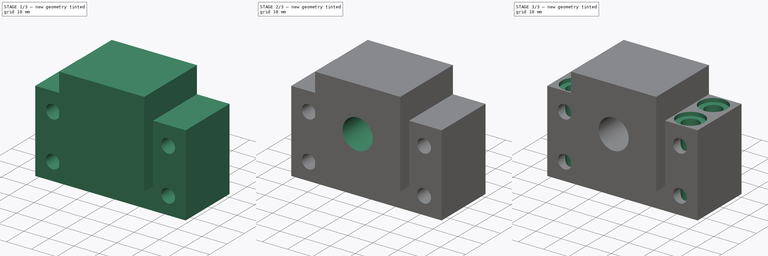
[diagram: build sequence overview — one tinted view per stage of 3, left to right]
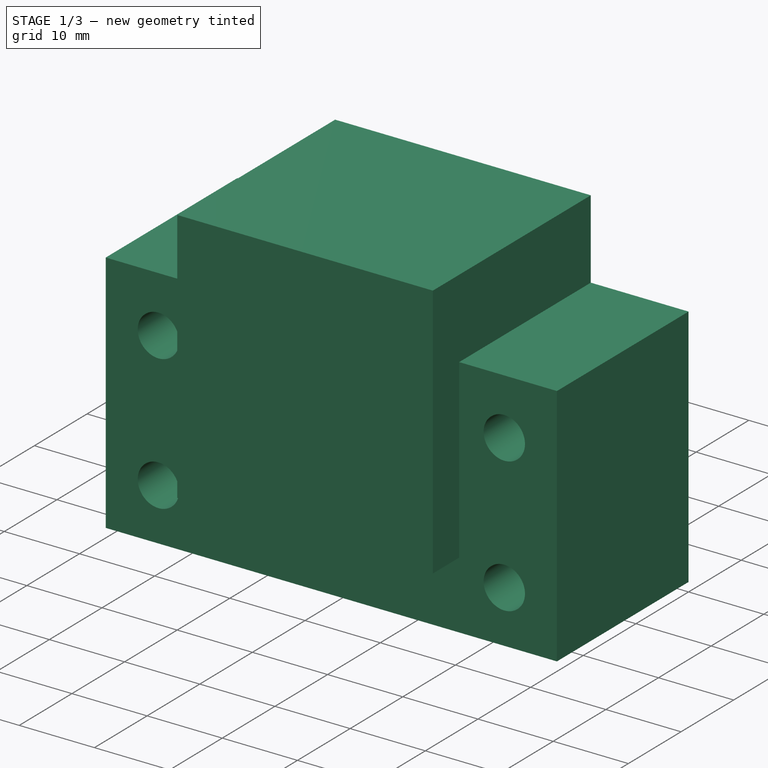
[diagram: stage 1 of 3 — iso view after this stage's code; geometry added in this stage tinted green]
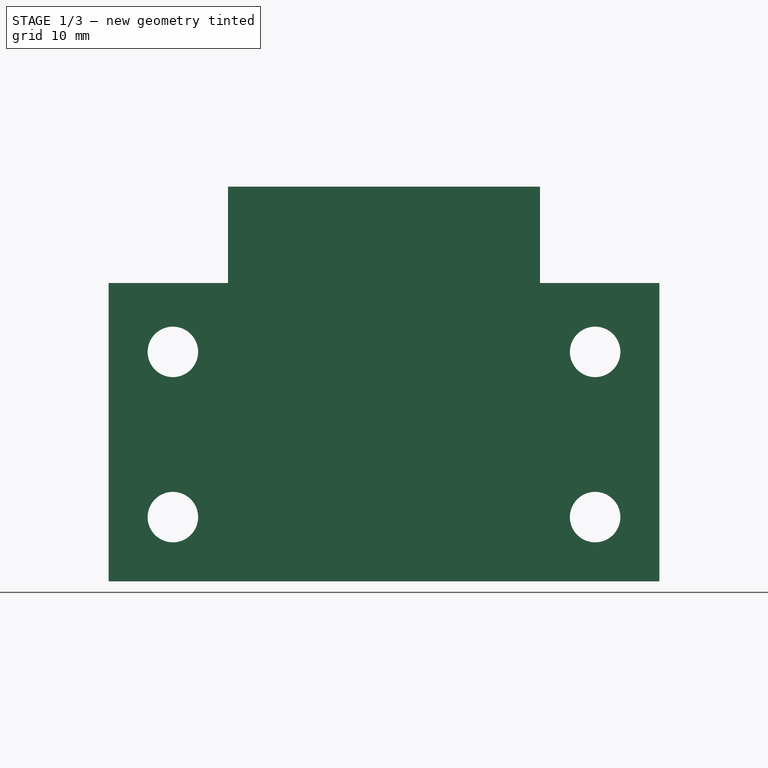
[diagram: stage 1 of 3 — front view after this stage's code; geometry added in this stage tinted green]
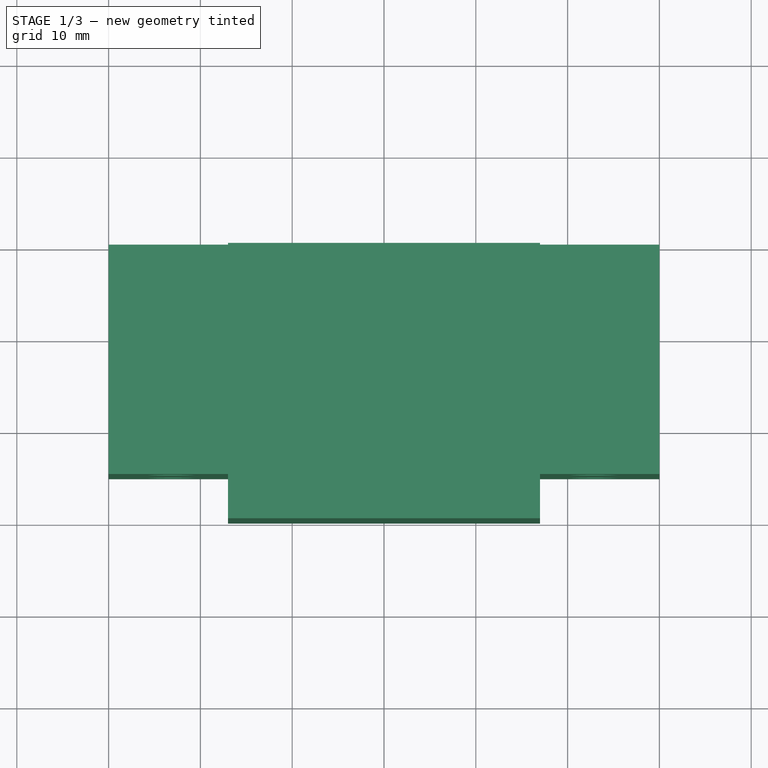
[diagram: stage 1 of 3 — top view after this stage's code; geometry added in this stage tinted green]
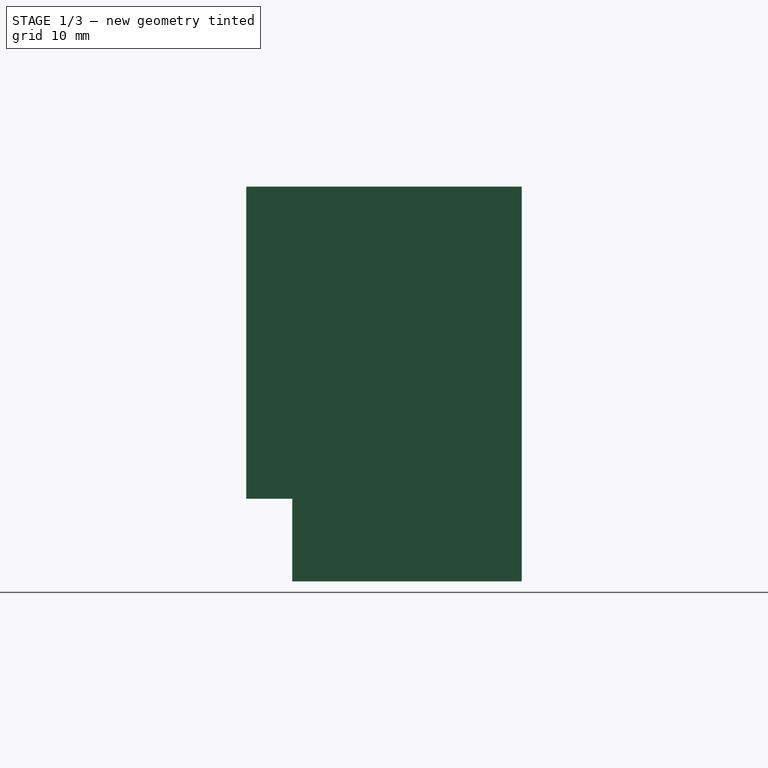
[diagram: stage 1 of 3 — right view after this stage's code; geometry added in this stage tinted green]
FCSTD DOCUMENT  (FreeCAD 0.19R)
Label: BK12
License: All rights reserved
LicenseURL: http://en.wikipedia.org/wiki/All_rights_reserved
objects: Sketcher::SketchObject×5, PartDesign::Pocket×3, PartDesign::Pad×2, PartDesign::CoordinateSystem×2, PartDesign::Body×1
note: 18 computed .brp shape members not serialized (recipe doc carries the construction recipe); baked Part::Feature solids carry a one-line shape summary decoded from their .brp

FEATURE [Sketcher::SketchObject] Sketch
  FullyConstrained = true
  MapMode = 5
  Placement = pos=(0,0,0) rot=(1,0,0;1.5708rad)
  Support = -> [XZ_Plane]
  sketch-geometry (12):
    g0: LineSegment StartX=-30 StartY=32.5 StartZ=0 EndX=-30 EndY=0 EndZ=0
    g1: LineSegment StartX=-30 StartY=0 StartZ=0 EndX=30 EndY=0 EndZ=0
    g2: LineSegment StartX=30 StartY=0 StartZ=0 EndX=30 EndY=32.5 EndZ=0
    g3: LineSegment StartX=-30 StartY=32.5 StartZ=0 EndX=-17 EndY=32.5 EndZ=0
    g4: LineSegment StartX=-17 StartY=32.5 StartZ=0 EndX=-17 EndY=43 EndZ=0
    g5: LineSegment StartX=-17 StartY=43 StartZ=0 EndX=17 EndY=43 EndZ=0
    g6: LineSegment StartX=17 StartY=43 StartZ=0 EndX=17 EndY=32.5 EndZ=0
    g7: LineSegment StartX=17 StartY=32.5 StartZ=0 EndX=30 EndY=32.5 EndZ=0
    g8: Circle CenterX=-23 CenterY=25 CenterZ=0 NormalX=0 NormalY=0 NormalZ=1 AngleXU=0 Radius=2.75
    g9: Circle CenterX=-23 CenterY=7 CenterZ=0 NormalX=0 NormalY=0 NormalZ=1 AngleXU=0 Radius=2.75
    g10: Circle CenterX=23 CenterY=7 CenterZ=0 NormalX=0 NormalY=0 NormalZ=1 AngleXU=0 Radius=2.75
    g11: Circle CenterX=23 CenterY=25 CenterZ=0 NormalX=0 NormalY=0 NormalZ=1 AngleXU=0 Radius=2.75
  constraints (33):
    c: PointOnObject(g0,g-1)
    c: Vertical(g0)
    c: Coincident(g1,g0)
    c: Coincident(g2,g1)
    c: Vertical(g2)
    c: Coincident(g3,g0)
    c: Horizontal(g3)
    c: Coincident(g4,g3)
    c: Vertical(g4)
    c: Coincident(g5,g4)
    c: Horizontal(g5)
    c: Coincident(g6,g5)
    c: Vertical(g6)
    c: Coincident(g7,g6)
    c: Coincident(g7,g2)
    c: Horizontal(g7)
    c: Equal(g3,g7)
    c: Equal(g6,g4)
    c: DistanceY(g2,g2) = 32.5
    c: Symmetric(g0,g1,g-2)
    c: DistanceY(g-1,g4) = 43
    c: DistanceX(g0,g1) = 60
    c: DistanceX(g5,g5) = 34
    c: Equal(g11,g10)
    c: Equal(g10,g9)
    c: Equal(g9,g8)
    c: Symmetric(g9,g10,g-2)
    c: Symmetric(g8,g11,g-2)
    c: Diameter(g9) = 5.5
    c: DistanceX(g9,g10) = 46
    c: DistanceX(g8,g11) = 46
    c: DistanceY(g9,g8) = 18
    c: DistanceY(g1,g11) = 25
FEATURE [PartDesign::Pad] Pad
  Direction = (1,1,1)
  Length = 25
  Length2 = 100
  Placement = pos=(0,0,0) rot=(1,0,0;1.5708rad)
  Profile = -> Sketch
  Type = 0
FEATURE [Sketcher::SketchObject] Sketch001
  ExternalGeometry = -> [Pad]
  FullyConstrained = true
  MapMode = 5
  Placement = pos=(0,-25,5.5e-15) rot=(1,0,0;1.5708rad)
  Support = -> [Pad]
  sketch-geometry (4):
    g0: LineSegment StartX=-17 StartY=43 StartZ=0 EndX=17 EndY=43 EndZ=0
    g1: LineSegment StartX=17 StartY=43 StartZ=0 EndX=17 EndY=9 EndZ=0
    g2: LineSegment StartX=17 StartY=9 StartZ=0 EndX=-17 EndY=9 EndZ=0
    g3: LineSegment StartX=-17 StartY=9 StartZ=0 EndX=-17 EndY=43 EndZ=0
  constraints (10):
    c: Coincident(g0,g1)
    c: Coincident(g1,g2)
    c: Coincident(g2,g3)
    c: Coincident(g3,g0)
    c: Horizontal(g2)
    c: Vertical(g1)
    c: Vertical(g3)
    c: Coincident(g0,g-3)
    c: Coincident(g0,g-3)
    c: DistanceY(g1,g1) = 34
FEATURE [PartDesign::Pad] Pad001
  BaseFeature = -> Pad
  Direction = (1,1,1)
  Length = 5
  Length2 = 100
  Placement = pos=(0,0,0) rot=(1,0,0;1.5708rad)
  Profile = -> Sketch001
  Type = 0
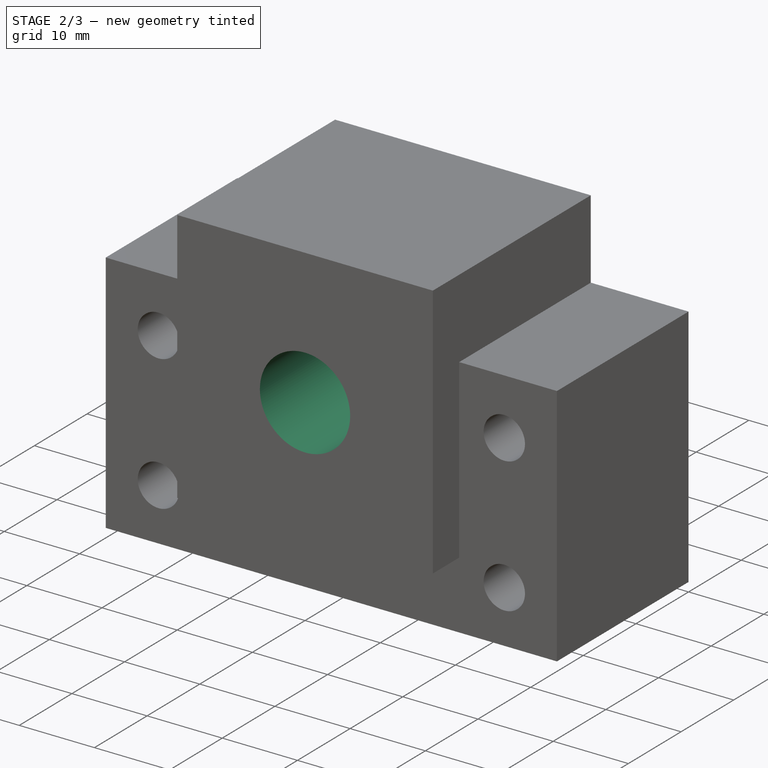
[diagram: stage 2 of 3 — iso view after this stage's code; geometry added in this stage tinted green]
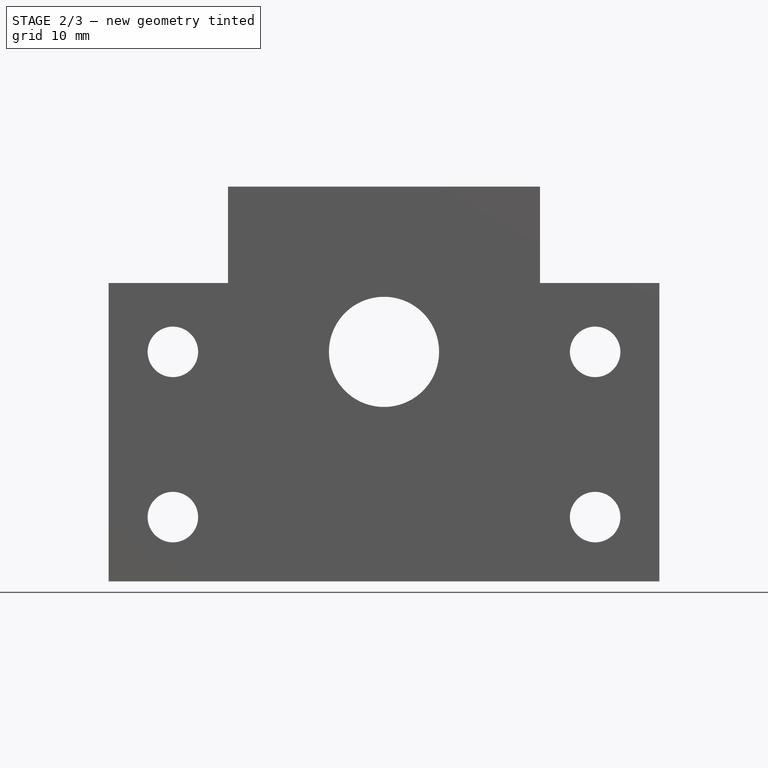
[diagram: stage 2 of 3 — front view after this stage's code; geometry added in this stage tinted green]
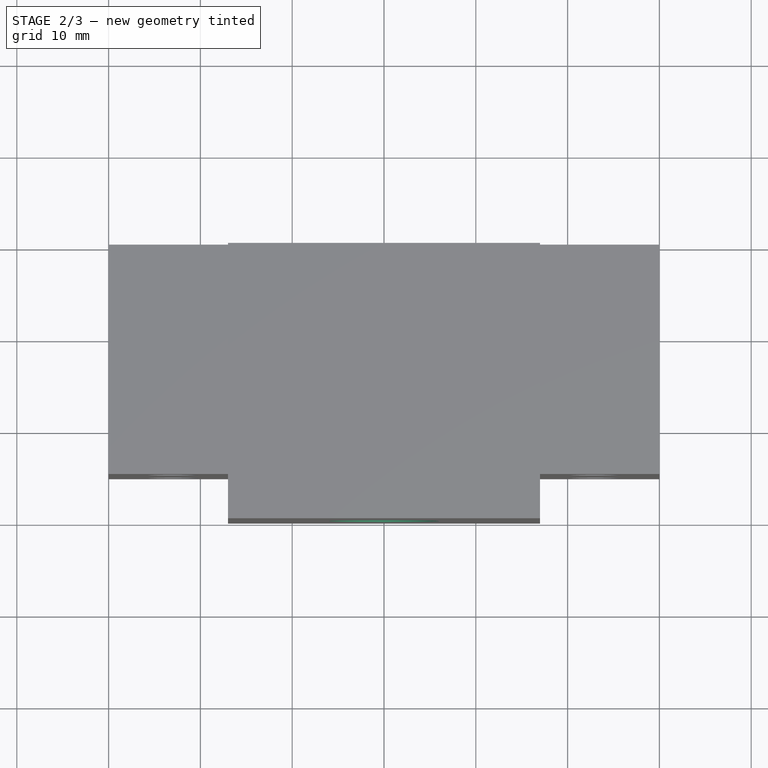
[diagram: stage 2 of 3 — top view after this stage's code; geometry added in this stage tinted green]
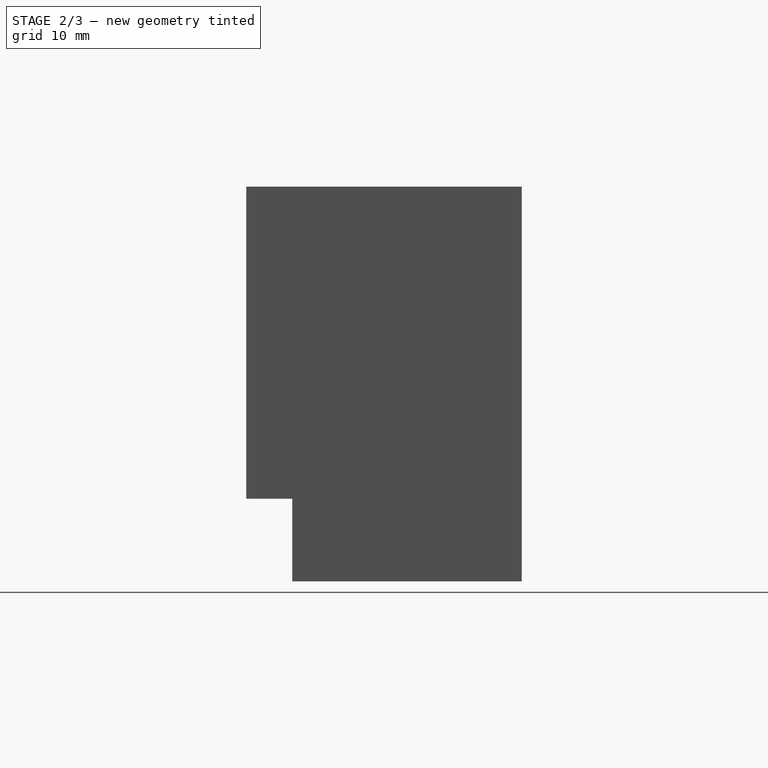
[diagram: stage 2 of 3 — right view after this stage's code; geometry added in this stage tinted green]
FEATURE [Sketcher::SketchObject] Sketch002
  FullyConstrained = true
  MapMode = 5
  Placement = pos=(0,-30,2.19e-14) rot=(1,0,0;1.5708rad)
  Support = -> [Pad001]
  sketch-geometry (1):
    g0: Circle CenterX=0 CenterY=25 CenterZ=0 NormalX=0 NormalY=0 NormalZ=1 AngleXU=0 Radius=6
  constraints (3):
    c: PointOnObject(g0,g-2)
    c: Diameter(g0) = 12
    c: DistanceY(g-1,g0) = 25
FEATURE [PartDesign::Pocket] Pocket
  BaseFeature = -> Pad001
  Length = 5
  Length2 = 100
  Placement = pos=(0,0,0) rot=(1,0,0;1.5708rad)
  Profile = -> Sketch002
  Type = 1
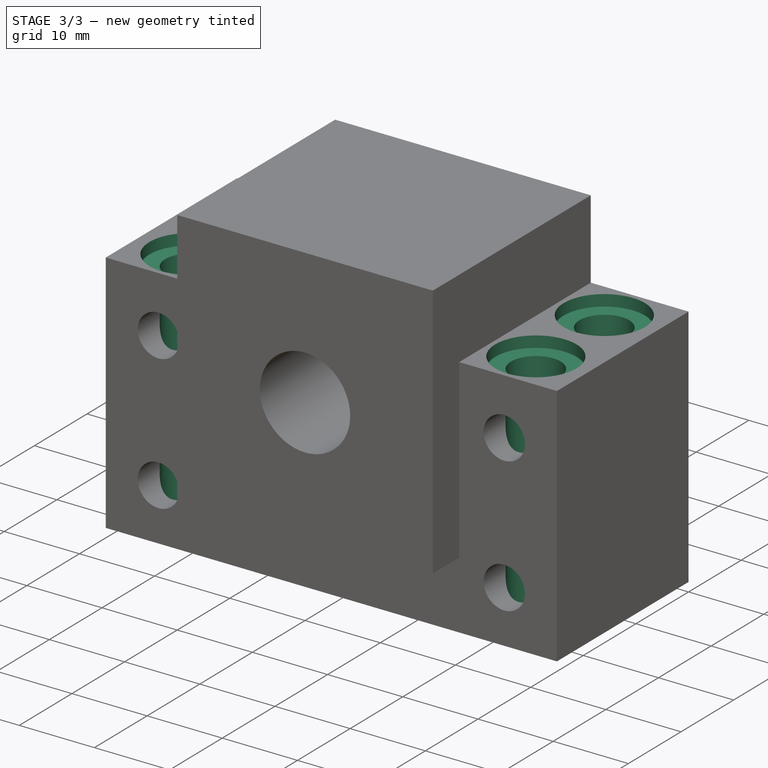
[diagram: stage 3 of 3 — iso view after this stage's code; geometry added in this stage tinted green]
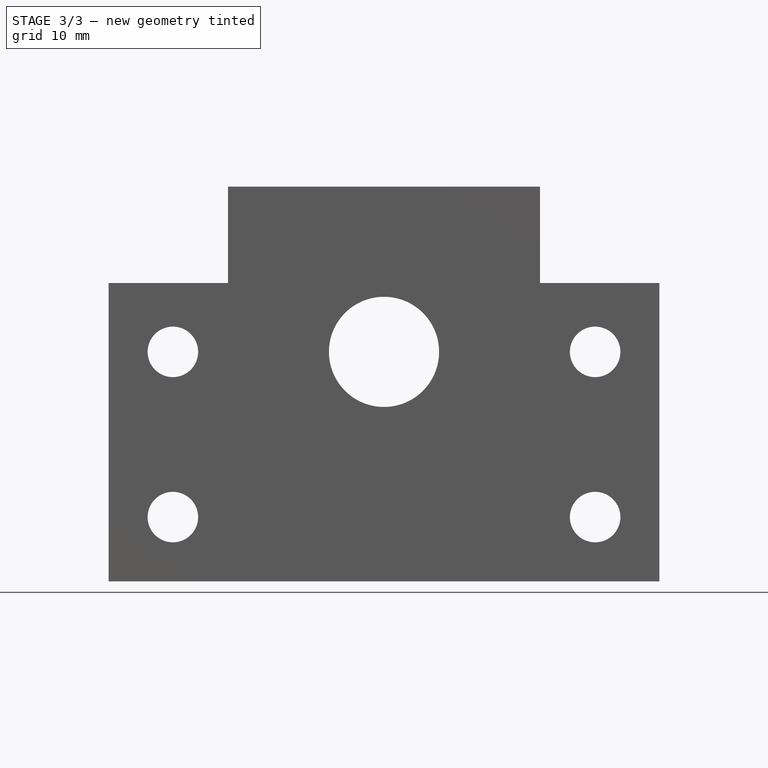
[diagram: stage 3 of 3 — front view after this stage's code; geometry added in this stage tinted green]
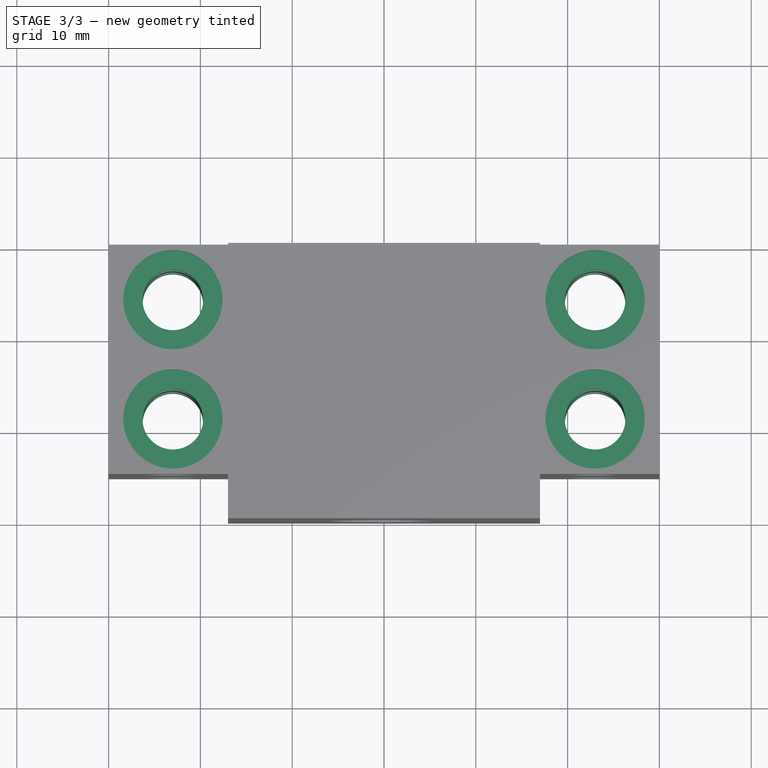
[diagram: stage 3 of 3 — top view after this stage's code; geometry added in this stage tinted green]
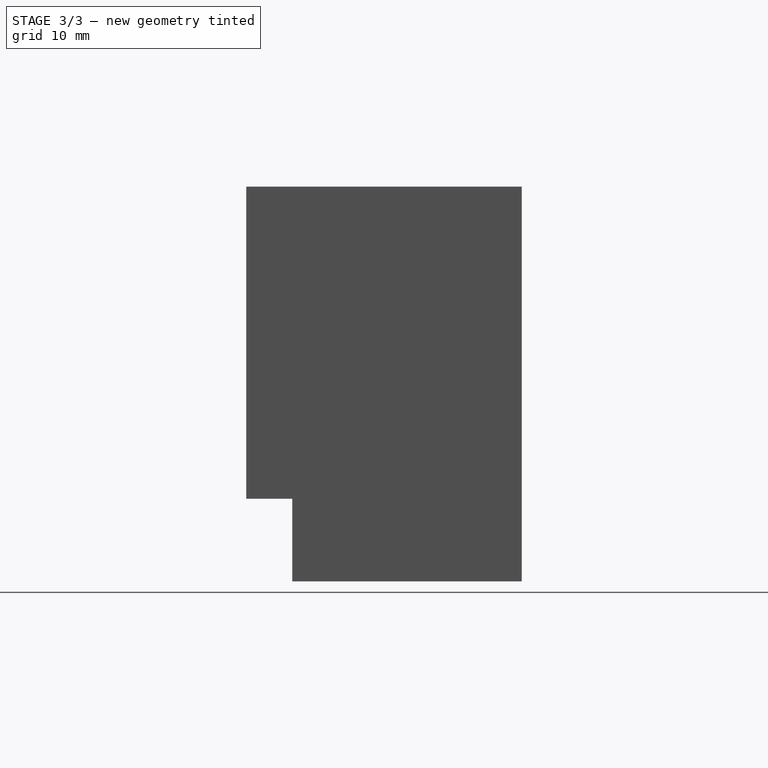
[diagram: stage 3 of 3 — right view after this stage's code; geometry added in this stage tinted green]
FEATURE [Sketcher::SketchObject] Sketch003
  FullyConstrained = true
  MapMode = 5
  Placement = pos=(0,0,0) rot=(1,0,0;3.14159rad)
  Support = -> [Pocket]
  sketch-geometry (4):
    g0: Circle CenterX=-23 CenterY=19 CenterZ=0 NormalX=0 NormalY=0 NormalZ=1 AngleXU=0 Radius=3.3
    g1: Circle CenterX=-23 CenterY=6 CenterZ=0 NormalX=0 NormalY=0 NormalZ=1 AngleXU=0 Radius=3.3
    g2: Circle CenterX=23 CenterY=6 CenterZ=0 NormalX=0 NormalY=0 NormalZ=1 AngleXU=0 Radius=3.3
    g3: Circle CenterX=23 CenterY=19 CenterZ=0 NormalX=0 NormalY=0 NormalZ=1 AngleXU=0 Radius=3.3
  constraints (10):
    c: Symmetric(g0,g3,g-2)
    c: Symmetric(g1,g2,g-2)
    c: Equal(g1,g0)
    c: Equal(g0,g3)
    c: Equal(g3,g2)
    c: Diameter(g3) = 6.6
    c: DistanceX(g1,g2) = 46
    c: DistanceX(g0,g3) = 46
    c: DistanceY(g-1,g2) = 6
    c: DistanceY(g2,g3) = 13
FEATURE [PartDesign::Pocket] Pocket001
  BaseFeature = -> Pocket
  Length = 5
  Length2 = 100
  Placement = pos=(0,0,0) rot=(1,0,0;1.5708rad)
  Profile = -> Sketch003
  Type = 1
FEATURE [Sketcher::SketchObject] Sketch004
  ExternalGeometry = -> [Pocket001]
  FullyConstrained = true
  MapMode = 5
  Placement = pos=(0,1.43e-14,32.5) rot=(0,0,1;3.14159rad)
  Support = -> [Pocket001]
  sketch-geometry (4):
    g0: Circle CenterX=-23 CenterY=19 CenterZ=0 NormalX=0 NormalY=0 NormalZ=1 AngleXU=0 Radius=5.4
    g1: Circle CenterX=-23 CenterY=6 CenterZ=0 NormalX=0 NormalY=0 NormalZ=1 AngleXU=0 Radius=5.4
    g2: Circle CenterX=23 CenterY=6 CenterZ=0 NormalX=0 NormalY=0 NormalZ=1 AngleXU=0 Radius=5.4
    g3: Circle CenterX=23 CenterY=19 CenterZ=0 NormalX=0 NormalY=0 NormalZ=1 AngleXU=0 Radius=5.4
  constraints (8):
    c: Coincident(g0,g-4)
    c: Coincident(g1,g-3)
    c: Coincident(g2,g-6)
    c: Coincident(g3,g-5)
    c: Equal(g3,g0)
    c: Equal(g0,g1)
    c: Equal(g1,g2)
    c: Diameter(g3) = 10.8
FEATURE [PartDesign::Pocket] Pocket002
  BaseFeature = -> Pocket001
  Length = 1.5
  Length2 = 100
  Placement = pos=(0,0,0) rot=(1,0,0;1.5708rad)
  Profile = -> Sketch004
  Type = 0
FEATURE [PartDesign::CoordinateSystem] LCS_mount
  AttacherType = Attacher::AttachEngine3D
  MapMode = 11
  Placement = pos=(0,3.2e-14,25) rot=(0.57735,-0.57735,0.57735;2.0944rad)
  Support = -> [Pocket002]
FEATURE [PartDesign::CoordinateSystem] LCS_H1
  AttacherType = Attacher::AttachEngine3D
  MapMode = 11
  Placement = pos=(23,-19,3.8e-14) rot=(0.707107,-0.707107,0;3.14159rad)
  Support = -> [Pocket002]
FEATURE [PartDesign::Body] Body
  Group = -> [Sketch,Pad,Sketch001,Pad001,Sketch002,Pocket,Sketch003,Pocket001,Sketch004,Pocket002,LCS_mount,LCS_H1]
  Origin = -> Origin
  Tip = -> Pocket002
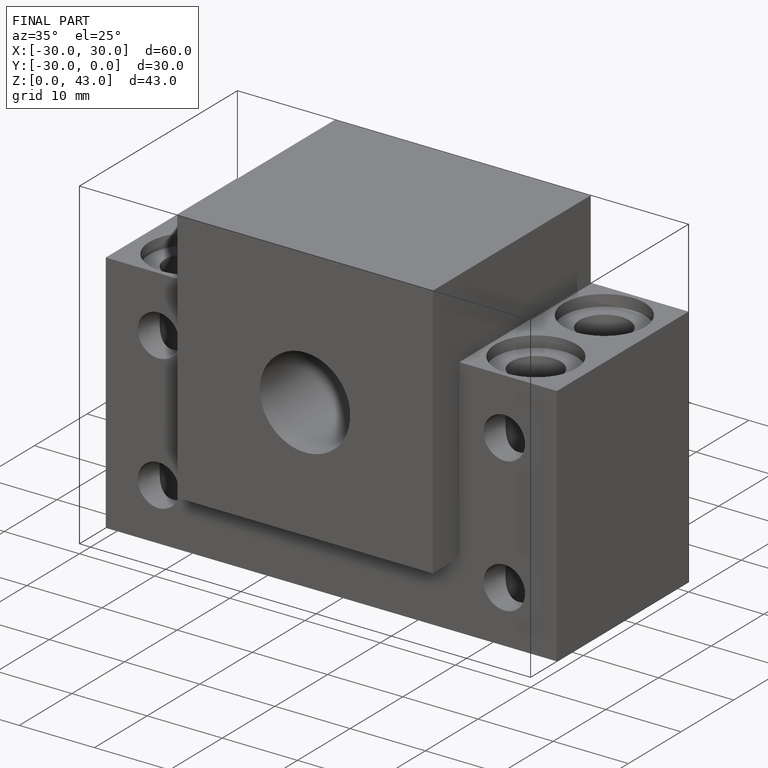
[diagram: finished part — iso view with bounding-box wireframe]
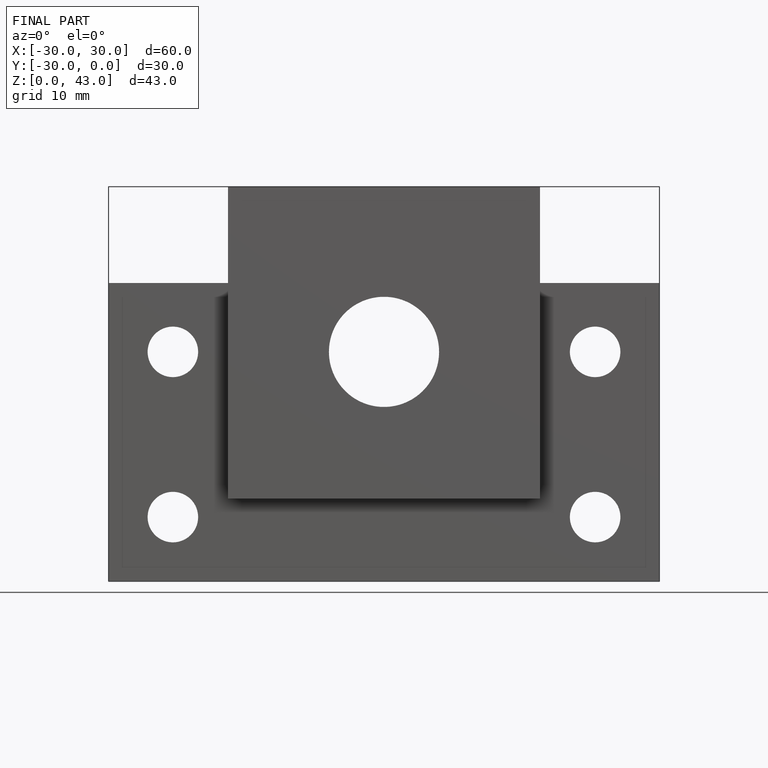
[diagram: finished part — front view with bounding-box wireframe]
